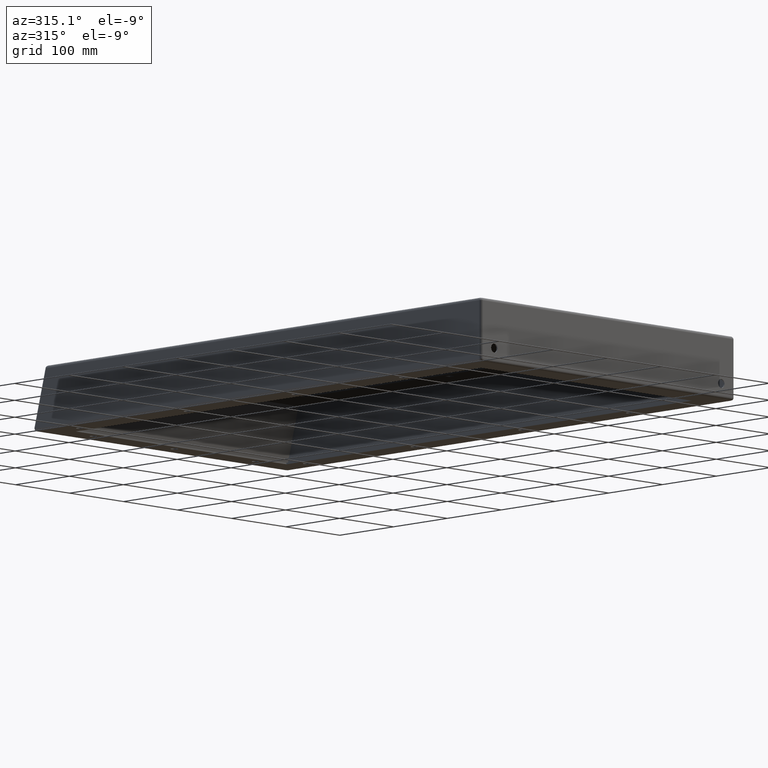
[diagram: clean part render]
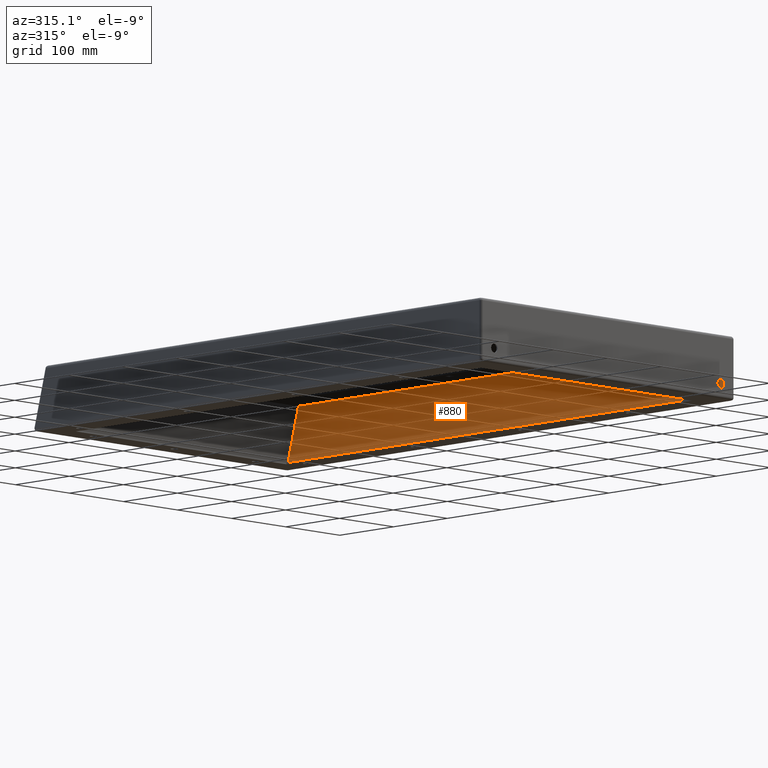
[diagram: same view with one face highlighted and labeled with its STEP entity id]
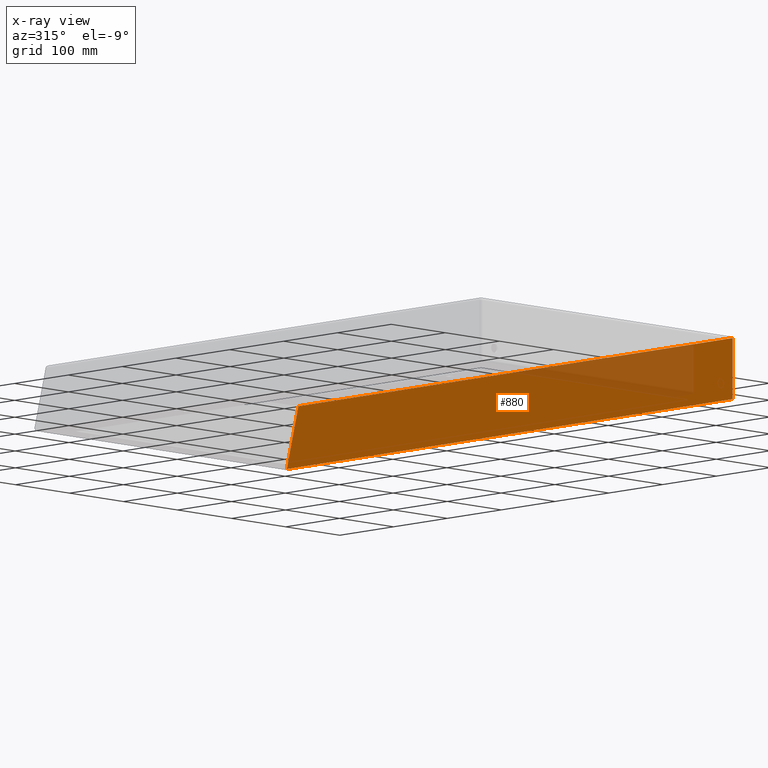
[diagram: x-ray of the same camera — body ghosted, the highlighted face saturated]
A machine part, auxiliary view. The second image highlights one B-rep face of the part: STEP entity #880.
The next image is the same camera in x-ray: the body ghosted, the highlighted face saturated — about 19% of this face is hidden behind the body in this view.
In plain terms, the highlighted planar face has unit normal (1, 0, -0).
Its self-contained STEP definition (entity closure, byte-faithful):
#47 = CARTESIAN_POINT ( 'NONE',  ( 232.9999999999999700, 810.0000000000000000, 83.00000000000008500 ) ) ;
#48 = DIRECTION ( 'NONE',  ( 0.0000000000000000000, -1.000000000000000000, -1.027984282060330300E-016 ) ) ;
#58 = CARTESIAN_POINT ( 'NONE',  ( 232.9999999999999700, 1.999999999999999600, 2.449293598294706400E-016 ) ) ;
#59 = DIRECTION ( 'NONE',  ( 0.0000000000000000000, 1.224646799147353500E-016, -1.000000000000000000 ) ) ;
#217 = CARTESIAN_POINT ( 'NONE',  ( 232.9999999999999700, 1.999999999999989600, 83.00000000000000000 ) ) ;
#555 = EDGE_LOOP ( 'NONE', ( #1596, #1597, #1598, #1599 ) ) ;
#771 = DIRECTION ( 'NONE',  ( 1.000000000000000000, 0.0000000000000000000, -0.0000000000000000000 ) ) ;
#773 = DIRECTION ( 'NONE',  ( -0.0000000000000000000, 0.0000000000000000000, -1.000000000000000000 ) ) ;
#788 = CARTESIAN_POINT ( 'NONE',  ( 232.9999999999999700, 0.0000000000000000000, 0.0000000000000000000 ) ) ;
#789 = PLANE ( 'NONE',  #1823 ) ;
#880 = ADVANCED_FACE ( 'NONE', ( #2170 ), #789, .F. ) ;
#905 = VERTEX_POINT ( 'NONE', #2268 ) ;
#912 = VERTEX_POINT ( 'NONE', #2275 ) ;
#913 = VERTEX_POINT ( 'NONE', #2276 ) ;
#1096 = EDGE_CURVE ( 'NONE', #905, #913, #2661, .T. ) ;
#1099 = EDGE_CURVE ( 'NONE', #913, #912, #2669, .T. ) ;
#1138 = EDGE_CURVE ( 'NONE', #912, #1307, #2743, .T. ) ;
#1143 = EDGE_CURVE ( 'NONE', #1307, #905, #2750, .T. ) ;
#1307 = VERTEX_POINT ( 'NONE', #217 ) ;
#1596 = ORIENTED_EDGE ( 'NONE', *, *, #1096, .F. ) ;
#1597 = ORIENTED_EDGE ( 'NONE', *, *, #1143, .F. ) ;
#1598 = ORIENTED_EDGE ( 'NONE', *, *, #1138, .F. ) ;
#1599 = ORIENTED_EDGE ( 'NONE', *, *, #1099, .F. ) ;
#1823 = AXIS2_PLACEMENT_3D ( 'NONE', #788, #771, #773 ) ;
#2170 = FACE_OUTER_BOUND ( 'NONE', #555, .T. ) ;
#2268 = CARTESIAN_POINT ( 'NONE',  ( 232.9999999999999700, 1.999999999999999100, 2.000000000000000000 ) ) ;
#2275 = CARTESIAN_POINT ( 'NONE',  ( 232.9999999999999700, 808.4653460240421100, 83.00000000000008500 ) ) ;
#2276 = CARTESIAN_POINT ( 'NONE',  ( 232.9999999999999700, 830.1692306109628100, 2.000000000000000000 ) ) ;
#2661 = LINE ( 'NONE', #2927, #2666 ) ;
#2666 = VECTOR ( 'NONE', #2943, 1000.000000000000000 ) ;
#2669 = LINE ( 'NONE', #2947, #2672 ) ;
#2672 = VECTOR ( 'NONE', #2948, 999.9999999999998900 ) ;
#2743 = LINE ( 'NONE', #47, #2745 ) ;
#2745 = VECTOR ( 'NONE', #48, 1000.000000000000000 ) ;
#2750 = LINE ( 'NONE', #58, #2753 ) ;
#2753 = VECTOR ( 'NONE', #59, 1000.000000000000000 ) ;
#2927 = CARTESIAN_POINT ( 'NONE',  ( 232.9999999999999700, 0.0000000000000000000, 2.000000000000000000 ) ) ;
#2943 = DIRECTION ( 'NONE',  ( -0.0000000000000000000, 1.000000000000000000, 0.0000000000000000000 ) ) ;
#2947 = CARTESIAN_POINT ( 'NONE',  ( 232.9999999999999700, 830.8438297040671600, -0.5176380902050363700 ) ) ;
#2948 = DIRECTION ( 'NONE',  ( 0.0000000000000000000, -0.2588190451025181900, 0.9659258262890690900 ) ) ;